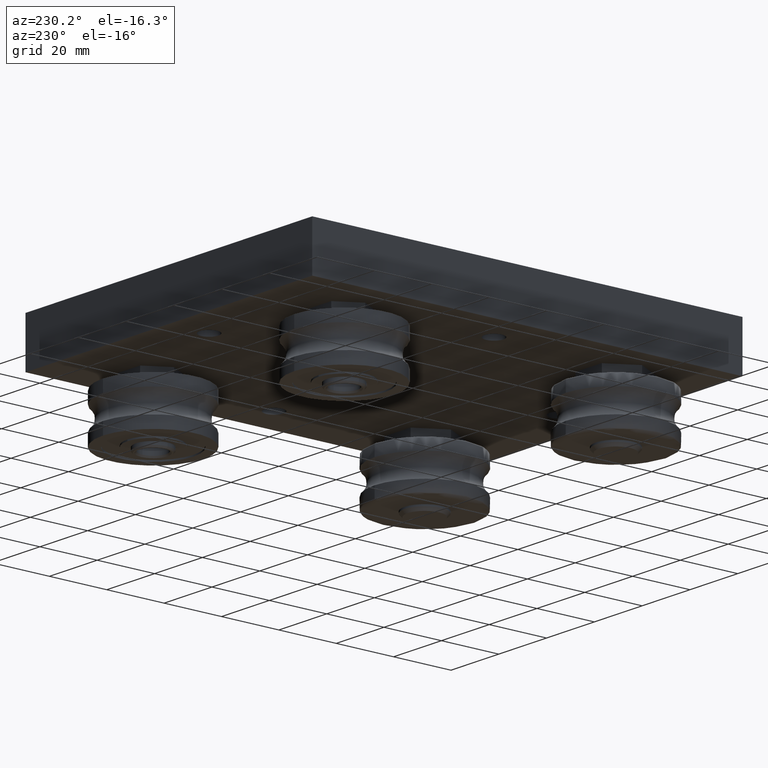
[diagram: clean part render]
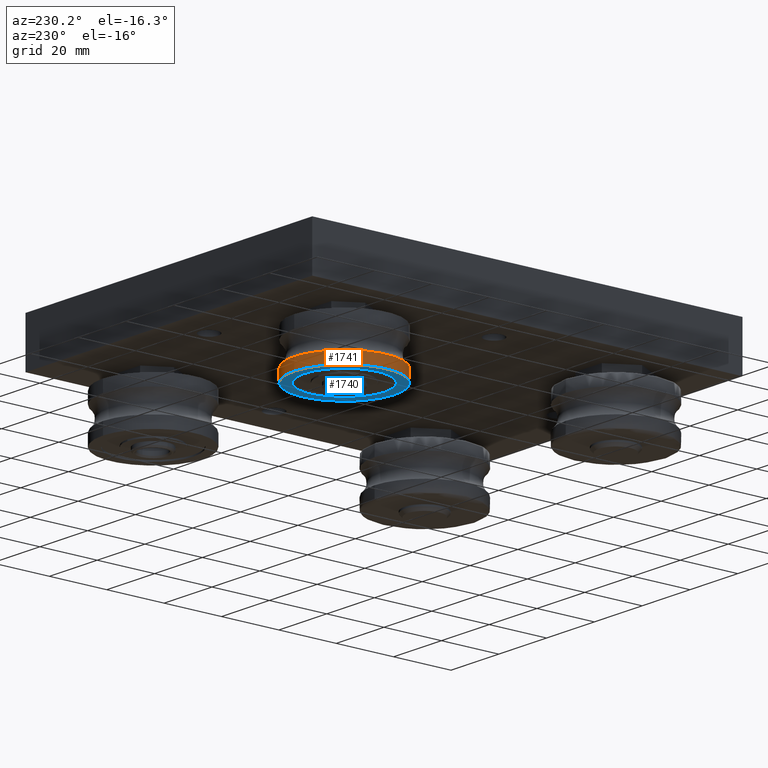
[diagram: same view with the hole feature highlighted: cylindrical wall and planar end face, labeled with their STEP entity ids]
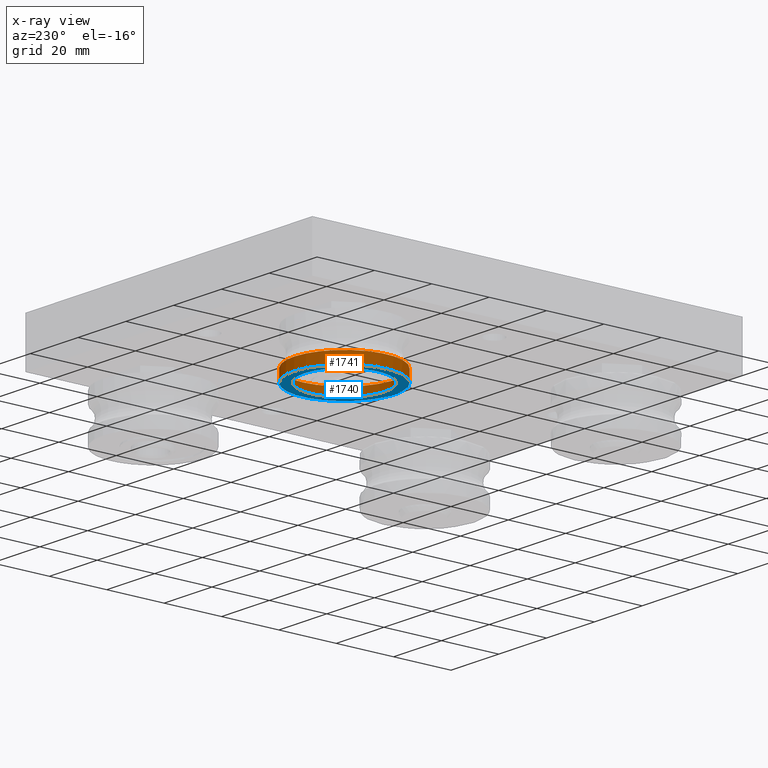
[diagram: x-ray of the same camera — body ghosted, the hole faces saturated]
A machine part, auxiliary view. The highlighted faces form one hole feature of diameter 35 mm: the cylindrical wall (entity #1741, orange) and its adjacent planar end face (entity #1740, blue) — they share a circular edge in the B-rep.
The next image is the same camera in x-ray (body ghosted, the hole faces saturated) — the bore reads through the body.
Wall:
#279=FACE_OUTER_BOUND('',#416,.T.);
#416=EDGE_LOOP('',(#1321,#1322,#1323,#1324,#1325));
#543=LINE('',#2895,#640);
#640=VECTOR('',#2331,17.5);
#740=CIRCLE('',#1994,17.5);
#741=CIRCLE('',#1996,17.5);
#742=CIRCLE('',#1997,17.5);
#864=VERTEX_POINT('',#2889);
#865=VERTEX_POINT('',#2892);
#866=VERTEX_POINT('',#2893);
#1030=EDGE_CURVE('',#864,#864,#740,.T.);
#1031=EDGE_CURVE('',#865,#866,#741,.T.);
#1032=EDGE_CURVE('',#865,#864,#543,.T.);
#1033=EDGE_CURVE('',#866,#865,#742,.T.);
#1321=ORIENTED_EDGE('',*,*,#1031,.F.);
#1322=ORIENTED_EDGE('',*,*,#1032,.T.);
#1323=ORIENTED_EDGE('',*,*,#1030,.T.);
#1324=ORIENTED_EDGE('',*,*,#1032,.F.);
#1325=ORIENTED_EDGE('',*,*,#1033,.F.);
#1697=CYLINDRICAL_SURFACE('',#1995,17.5);
#1741=ADVANCED_FACE('',(#279),#1697,.T.);
#1994=AXIS2_PLACEMENT_3D('',#2890,#2325,#2326);
#1995=AXIS2_PLACEMENT_3D('',#2891,#2327,#2328);
#1996=AXIS2_PLACEMENT_3D('',#2894,#2329,#2330);
#1997=AXIS2_PLACEMENT_3D('',#2896,#2332,#2333);
#2325=DIRECTION('center_axis',(1.,0.,0.));
#2326=DIRECTION('ref_axis',(0.,1.,0.));
#2327=DIRECTION('center_axis',(1.,0.,0.));
#2328=DIRECTION('ref_axis',(0.,1.,0.));
#2329=DIRECTION('center_axis',(1.,0.,0.));
#2330=DIRECTION('ref_axis',(0.,1.,0.));
#2331=DIRECTION('',(-1.,0.,0.));
#2332=DIRECTION('center_axis',(1.,0.,0.));
#2333=DIRECTION('ref_axis',(0.,1.,0.));
#2889=CARTESIAN_POINT('',(-7.95,-17.5,-2.14313189850787E-15));
#2890=CARTESIAN_POINT('Origin',(-7.95,0.,0.));
#2891=CARTESIAN_POINT('Origin',(-5.91648783153539,0.,0.));
#2892=CARTESIAN_POINT('',(-3.88297566307078,-17.5,-2.14313189850787E-15));
#2893=CARTESIAN_POINT('',(-3.88297566307078,-2.14313189850787E-15,17.5));
#2894=CARTESIAN_POINT('Origin',(-3.88297566307078,0.,0.));
#2895=CARTESIAN_POINT('',(-5.91648783153539,-17.5,-2.14313189850787E-15));
#2896=CARTESIAN_POINT('Origin',(-3.88297566307078,0.,0.));
End face:
#184=FACE_BOUND('',#415,.T.);
#211=PLANE('',#1993);
#278=FACE_OUTER_BOUND('',#414,.T.);
#414=EDGE_LOOP('',(#1319));
#415=EDGE_LOOP('',(#1320));
#739=CIRCLE('',#1992,14.);
#740=CIRCLE('',#1994,17.5);
#863=VERTEX_POINT('',#2885);
#864=VERTEX_POINT('',#2889);
#1029=EDGE_CURVE('',#863,#863,#739,.T.);
#1030=EDGE_CURVE('',#864,#864,#740,.T.);
#1319=ORIENTED_EDGE('',*,*,#1030,.F.);
#1320=ORIENTED_EDGE('',*,*,#1029,.T.);
#1740=ADVANCED_FACE('',(#278,#184),#211,.T.);
#1992=AXIS2_PLACEMENT_3D('',#2887,#2321,#2322);
#1993=AXIS2_PLACEMENT_3D('',#2888,#2323,#2324);
#1994=AXIS2_PLACEMENT_3D('',#2890,#2325,#2326);
#2321=DIRECTION('center_axis',(1.,0.,0.));
#2322=DIRECTION('ref_axis',(0.,1.,0.));
#2323=DIRECTION('center_axis',(-1.,0.,0.));
#2324=DIRECTION('ref_axis',(0.,0.,1.));
#2325=DIRECTION('center_axis',(1.,0.,0.));
#2326=DIRECTION('ref_axis',(0.,1.,0.));
#2885=CARTESIAN_POINT('',(-7.95,-14.,-1.71450551880629E-15));
#2887=CARTESIAN_POINT('Origin',(-7.95,0.,0.));
#2888=CARTESIAN_POINT('Origin',(-7.95,15.75,0.));
#2889=CARTESIAN_POINT('',(-7.95,-17.5,-2.14313189850787E-15));
#2890=CARTESIAN_POINT('Origin',(-7.95,0.,0.));